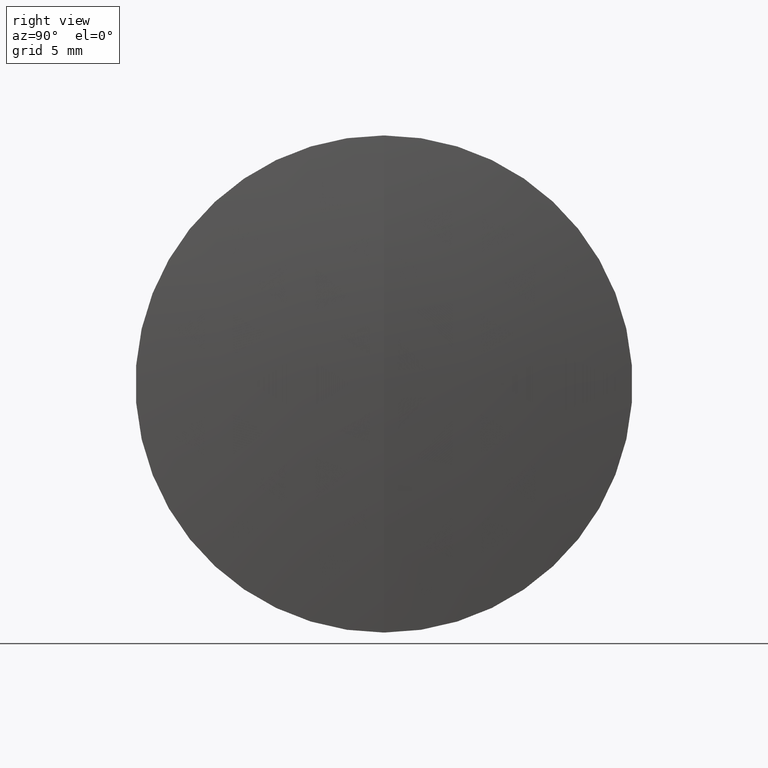
[diagram: clean part render]
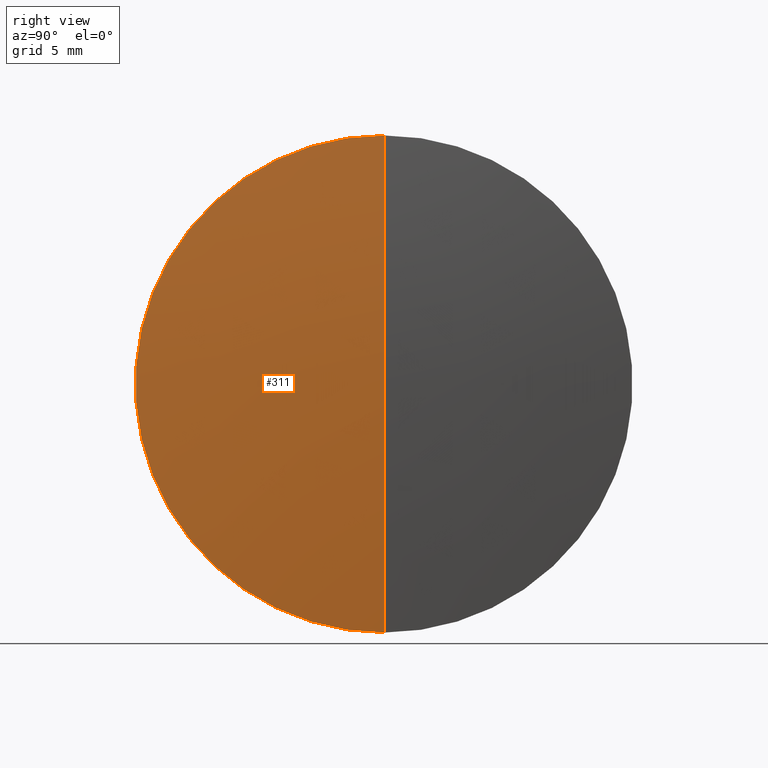
[diagram: same view with one face highlighted and labeled with its STEP entity id]
A machine part, right view. The second image highlights one B-rep face of the part: STEP entity #311.
In plain terms, the highlighted spherical surface has radius 191.87 mm.
Its self-contained STEP definition (entity closure, byte-faithful):
#14 = EDGE_CURVE ( 'NONE', #141, #180, #23, .T. ) ;
#23 = CIRCLE ( 'NONE', #45, 191.8700000000000000 ) ;
#24 = DIRECTION ( 'NONE',  ( -1.000000000000000000, -0.0000000000000000000, -0.0000000000000000000 ) ) ;
#30 = DIRECTION ( 'NONE',  ( -0.0000000000000000000, 1.000000000000000000, 1.224646799147353200E-016 ) ) ;
#40 = ORIENTED_EDGE ( 'NONE', *, *, #219, .F. ) ;
#45 = AXIS2_PLACEMENT_3D ( 'NONE', #290, #317, #220 ) ;
#61 = CARTESIAN_POINT ( 'NONE',  ( 268.1441532013300800, 0.0000000000000000000, 1.174864906762013400E-014 ) ) ;
#88 = ORIENTED_EDGE ( 'NONE', *, *, #14, .T. ) ;
#90 = CARTESIAN_POINT ( 'NONE',  ( 76.27415320133005100, 0.0000000000000000000, 0.0000000000000000000 ) ) ;
#93 = ORIENTED_EDGE ( 'NONE', *, *, #324, .F. ) ;
#103 = FACE_OUTER_BOUND ( 'NONE', #137, .T. ) ;
#108 = DIRECTION ( 'NONE',  ( 0.0000000000000000000, -1.224646799147353200E-016, 1.000000000000000000 ) ) ;
#117 = DIRECTION ( 'NONE',  ( 0.0000000000000000000, 1.000000000000000000, 0.0000000000000000000 ) ) ;
#123 = CIRCLE ( 'NONE', #298, 191.8700000000000000 ) ;
#125 = VERTEX_POINT ( 'NONE', #224 ) ;
#127 = CIRCLE ( 'NONE', #285, 19.99999999999998900 ) ;
#137 = EDGE_LOOP ( 'NONE', ( #93, #88, #40 ) ) ;
#141 = VERTEX_POINT ( 'NONE', #61 ) ;
#180 = VERTEX_POINT ( 'NONE', #226 ) ;
#184 = CARTESIAN_POINT ( 'NONE',  ( 267.0989338248119800, 0.0000000000000000000, 0.0000000000000000000 ) ) ;
#207 = SPHERICAL_SURFACE ( 'NONE', #315, 191.8700000000000000 ) ;
#219 = EDGE_CURVE ( 'NONE', #125, #180, #127, .T. ) ;
#220 = DIRECTION ( 'NONE',  ( 0.0000000000000000000, 0.0000000000000000000, -1.000000000000000000 ) ) ;
#224 = CARTESIAN_POINT ( 'NONE',  ( 267.0989338248119800, 2.449293598294706100E-015, -19.99999999999998900 ) ) ;
#226 = CARTESIAN_POINT ( 'NONE',  ( 267.0989338248119800, 0.0000000000000000000, 19.99999999999998900 ) ) ;
#274 = DIRECTION ( 'NONE',  ( 0.0000000000000000000, 0.0000000000000000000, 1.000000000000000000 ) ) ;
#285 = AXIS2_PLACEMENT_3D ( 'NONE', #184, #24, #346 ) ;
#290 = CARTESIAN_POINT ( 'NONE',  ( 76.27415320133005100, 0.0000000000000000000, 0.0000000000000000000 ) ) ;
#298 = AXIS2_PLACEMENT_3D ( 'NONE', #325, #30, #108 ) ;
#311 = ADVANCED_FACE ( 'NONE', ( #103 ), #207, .T. ) ;
#315 = AXIS2_PLACEMENT_3D ( 'NONE', #90, #117, #274 ) ;
#317 = DIRECTION ( 'NONE',  ( 0.0000000000000000000, -1.000000000000000000, 0.0000000000000000000 ) ) ;
#324 = EDGE_CURVE ( 'NONE', #141, #125, #123, .T. ) ;
#325 = CARTESIAN_POINT ( 'NONE',  ( 76.27415320133005100, 0.0000000000000000000, 0.0000000000000000000 ) ) ;
#346 = DIRECTION ( 'NONE',  ( 0.0000000000000000000, 0.0000000000000000000, 1.000000000000000000 ) ) ;